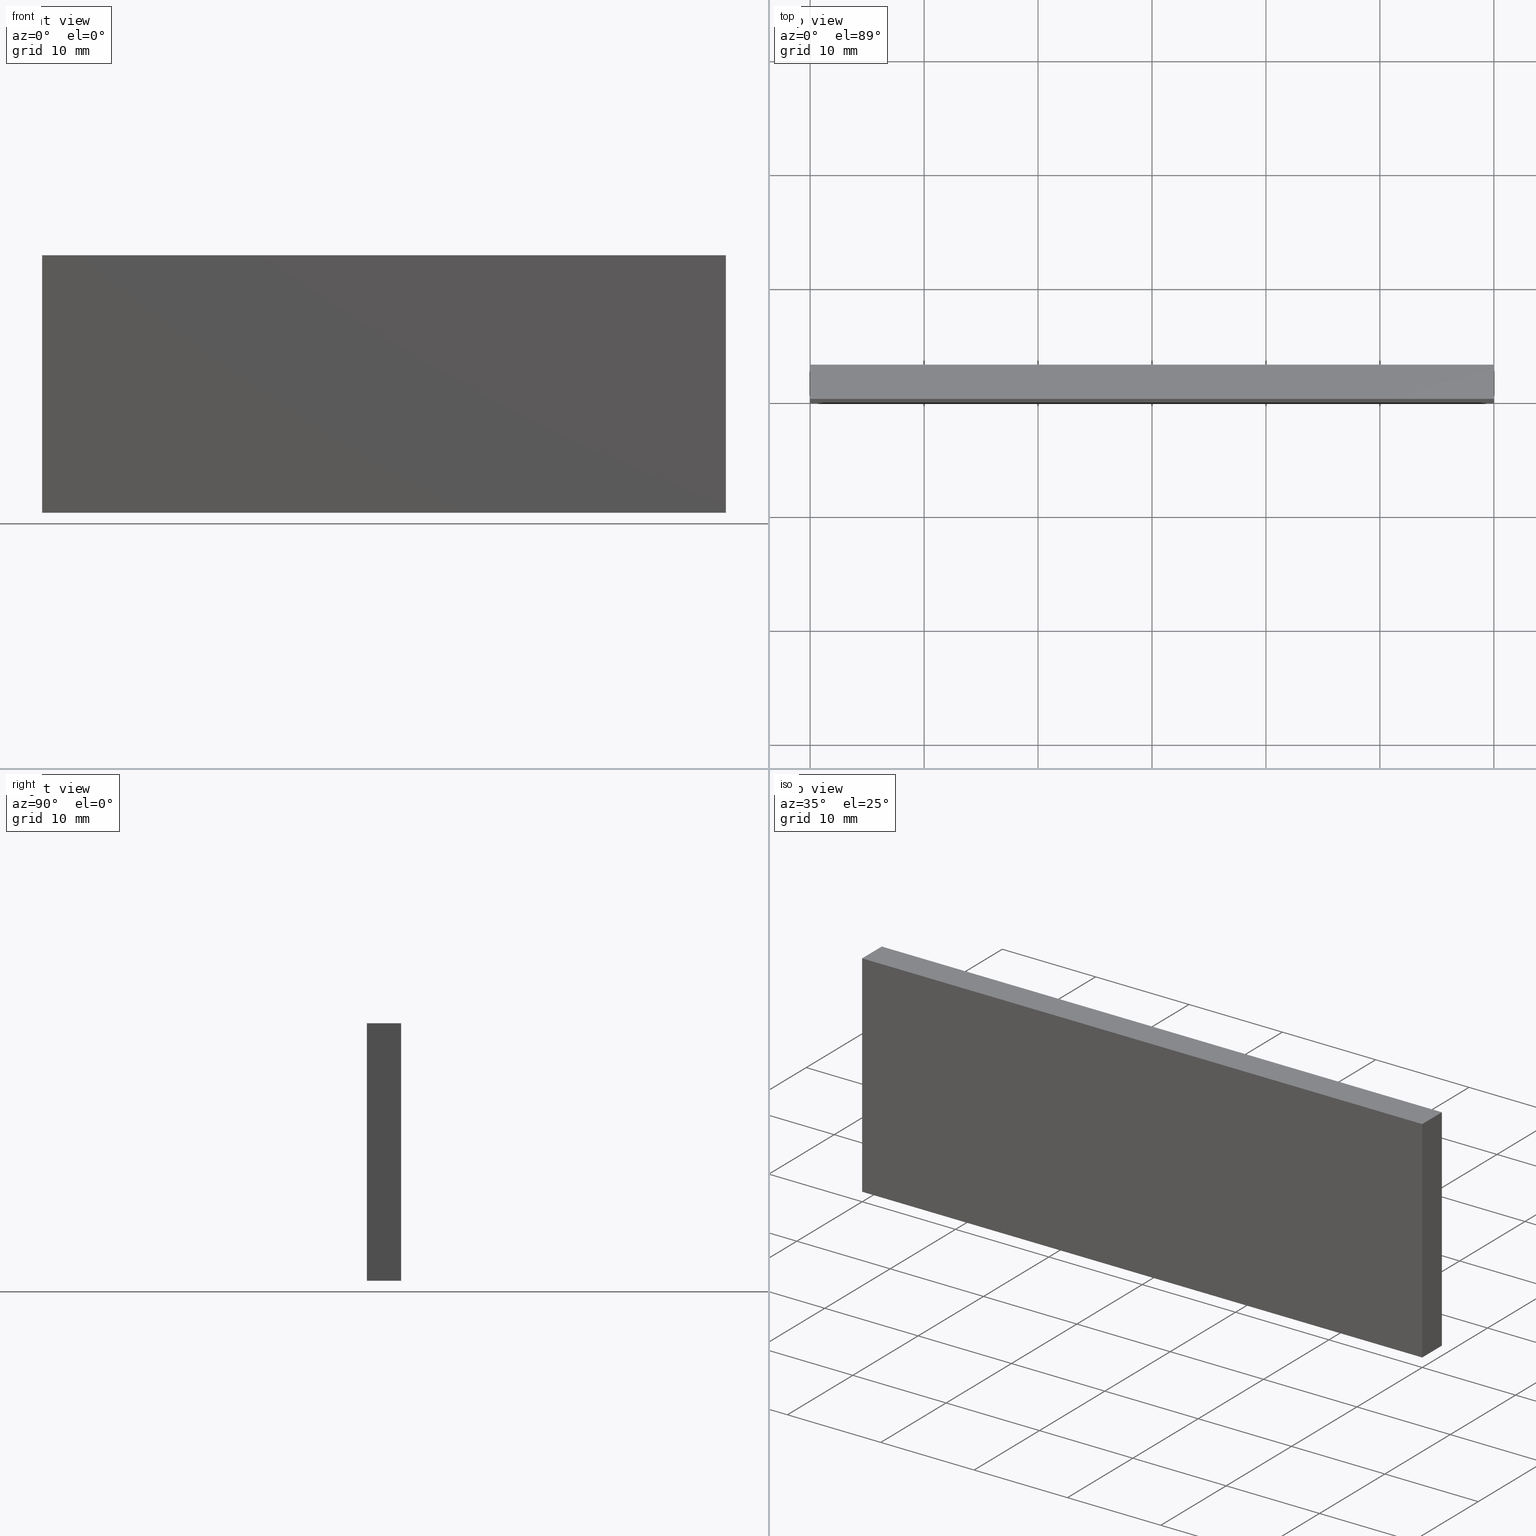
[diagram: canonical four-view strip — front | top / right | iso, engineering-drawing reading convention]
A machine part, canonical four-view strip (front | top / right | iso — engineering-drawing reading convention). The complete STEP part file that produces these views, byte-faithful:
ISO-10303-21;
HEADER;
FILE_DESCRIPTION (( 'STEP AP214' ),
    '1' );
FILE_NAME ('A000199-V.STEP',
    '2020-03-12T15:00:50',
    ( '' ),
    ( '' ),
    'SwSTEP 2.0',
    'SolidWorks 2010',
    '' );
FILE_SCHEMA (( 'AUTOMOTIVE_DESIGN' ));
ENDSEC;

DATA;
#1 = PRODUCT_DEFINITION_CONTEXT ( 'detailed design', #280, 'design' ) ;
#2 = PRODUCT_DEFINITION_SHAPE ( 'NONE', 'NONE',  #172 ) ;
#3 = CARTESIAN_POINT ( 'NONE',  ( 0.0000000000000000000, 0.0000000000000000000, -11.29999999999999900 ) ) ;
#4 = CARTESIAN_POINT ( 'NONE',  ( 30.00000000000000000, 3.000000000000000000, -11.29999999999999900 ) ) ;
#5 = CARTESIAN_POINT ( 'NONE',  ( 30.00000000000000000, 0.0000000000000000000, -11.29999999999999900 ) ) ;
#6 = VERTEX_POINT ( 'NONE', #4 ) ;
#7 = VERTEX_POINT ( 'NONE', #18 ) ;
#8 = CARTESIAN_POINT ( 'NONE',  ( -30.00000000000000000, 0.0000000000000000000, 11.29999999999999900 ) ) ;
#9 = DIRECTION ( 'NONE',  ( -1.000000000000000000, -0.0000000000000000000, -0.0000000000000000000 ) ) ;
#10 = CARTESIAN_POINT ( 'NONE',  ( 30.00000000000000000, 3.000000000000000000, 11.29999999999999900 ) ) ;
#11 = CARTESIAN_POINT ( 'NONE',  ( 30.00000000000000000, 3.000000000000000000, -11.29999999999999900 ) ) ;
#12 = DIRECTION ( 'NONE',  ( 0.0000000000000000000, -1.000000000000000000, -0.0000000000000000000 ) ) ;
#13 = CARTESIAN_POINT ( 'NONE',  ( -30.00000000000000000, 3.000000000000000000, -11.29999999999999900 ) ) ;
#14 = VERTEX_POINT ( 'NONE', #8 ) ;
#15 = CARTESIAN_POINT ( 'NONE',  ( 30.00000000000000000, 3.000000000000000000, 11.29999999999999900 ) ) ;
#16 = VERTEX_POINT ( 'NONE', #17 ) ;
#17 = CARTESIAN_POINT ( 'NONE',  ( -30.00000000000000000, 3.000000000000000000, 11.29999999999999900 ) ) ;
#18 = CARTESIAN_POINT ( 'NONE',  ( -30.00000000000000000, 3.000000000000000000, -11.29999999999999900 ) ) ;
#19 = CARTESIAN_POINT ( 'NONE',  ( -30.00000000000000000, 0.0000000000000000000, -11.29999999999999900 ) ) ;
#20 = VERTEX_POINT ( 'NONE', #5 ) ;
#21 = VERTEX_POINT ( 'NONE', #19 ) ;
#22 = CARTESIAN_POINT ( 'NONE',  ( 30.00000000000000000, 0.0000000000000000000, 11.29999999999999900 ) ) ;
#23 = DIRECTION ( 'NONE',  ( 0.0000000000000000000, 1.000000000000000000, -0.0000000000000000000 ) ) ;
#24 = VERTEX_POINT ( 'NONE', #10 ) ;
#25 = VERTEX_POINT ( 'NONE', #22 ) ;
#26 = PRODUCT ( 'A000199-V', 'A000199-V', '', ( #281 ) ) ;
#27 = EDGE_LOOP ( 'NONE', ( #54, #111, #32, #61 ) ) ;
#28 = ORIENTED_EDGE ( 'NONE', *, *, #161, .F. ) ;
#29 = ORIENTED_EDGE ( 'NONE', *, *, #157, .F. ) ;
#30 = ORIENTED_EDGE ( 'NONE', *, *, #139, .T. ) ;
#31 = EDGE_LOOP ( 'NONE', ( #60, #62, #29, #30 ) ) ;
#32 = ORIENTED_EDGE ( 'NONE', *, *, #148, .F. ) ;
#33 = ORIENTED_EDGE ( 'NONE', *, *, #149, .F. ) ;
#34 = ORIENTED_EDGE ( 'NONE', *, *, #155, .F. ) ;
#35 = ORIENTED_EDGE ( 'NONE', *, *, #139, .F. ) ;
#36 =( GEOMETRIC_REPRESENTATION_CONTEXT ( 3 ) GLOBAL_UNCERTAINTY_ASSIGNED_CONTEXT ( ( #134 ) ) GLOBAL_UNIT_ASSIGNED_CONTEXT ( ( #232, #231, #234 ) ) REPRESENTATION_CONTEXT ( 'NONE', 'WORKASPACE' ) );
#37 = LINE ( 'NONE', #11, #55 ) ;
#38 = VECTOR ( 'NONE', #12, 1000.000000000000000 ) ;
#39 = LINE ( 'NONE', #210, #44 ) ;
#40 =( GEOMETRIC_REPRESENTATION_CONTEXT ( 3 ) GLOBAL_UNCERTAINTY_ASSIGNED_CONTEXT ( ( #135 ) ) GLOBAL_UNIT_ASSIGNED_CONTEXT ( ( #187, #242, #241 ) ) REPRESENTATION_CONTEXT ( 'NONE', 'WORKASPACE' ) );
#41 = COLOUR_RGB ( '',0.7529411764705882200, 0.7529411764705882200, 0.7529411764705882200 ) ;
#42 = PRESENTATION_STYLE_ASSIGNMENT (( #254 ) ) ;
#43 = VECTOR ( 'NONE', #23, 1000.000000000000000 ) ;
#44 = VECTOR ( 'NONE', #208, 1000.000000000000000 ) ;
#45 = ORIENTED_EDGE ( 'NONE', *, *, #156, .F. ) ;
#46 = ORIENTED_EDGE ( 'NONE', *, *, #141, .T. ) ;
#47 = ORIENTED_EDGE ( 'NONE', *, *, #149, .T. ) ;
#48 = ORIENTED_EDGE ( 'NONE', *, *, #155, .T. ) ;
#49 = STYLED_ITEM ( 'NONE', ( #42 ), #136 ) ;
#50 = SHAPE_DEFINITION_REPRESENTATION ( #2, #136 ) ;
#51 = FACE_OUTER_BOUND ( 'NONE', #118, .T. ) ;
#52 = LINE ( 'NONE', #233, #53 ) ;
#53 = VECTOR ( 'NONE', #207, 1000.000000000000000 ) ;
#54 = ORIENTED_EDGE ( 'NONE', *, *, #157, .T. ) ;
#55 = VECTOR ( 'NONE', #214, 1000.000000000000000 ) ;
#56 = LINE ( 'NONE', #212, #96 ) ;
#57 = VECTOR ( 'NONE', #9, 1000.000000000000000 ) ;
#58 = LINE ( 'NONE', #3, #57 ) ;
#59 = LINE ( 'NONE', #13, #38 ) ;
#60 = ORIENTED_EDGE ( 'NONE', *, *, #141, .F. ) ;
#61 = ORIENTED_EDGE ( 'NONE', *, *, #161, .T. ) ;
#62 = ORIENTED_EDGE ( 'NONE', *, *, #142, .F. ) ;
#63 = ORIENTED_EDGE ( 'NONE', *, *, #153, .T. ) ;
#64 = ORIENTED_EDGE ( 'NONE', *, *, #154, .F. ) ;
#65 = ORIENTED_EDGE ( 'NONE', *, *, #156, .T. ) ;
#66 = ORIENTED_EDGE ( 'NONE', *, *, #154, .T. ) ;
#67 = ORIENTED_EDGE ( 'NONE', *, *, #148, .T. ) ;
#68 = ORIENTED_EDGE ( 'NONE', *, *, #160, .T. ) ;
#69 =( GEOMETRIC_REPRESENTATION_CONTEXT ( 3 ) GLOBAL_UNCERTAINTY_ASSIGNED_CONTEXT ( ( #137 ) ) GLOBAL_UNIT_ASSIGNED_CONTEXT ( ( #257, #259, #261 ) ) REPRESENTATION_CONTEXT ( 'NONE', 'WORKASPACE' ) );
#70 = LINE ( 'NONE', #219, #71 ) ;
#71 = VECTOR ( 'NONE', #216, 1000.000000000000000 ) ;
#72 = LINE ( 'NONE', #218, #73 ) ;
#73 = VECTOR ( 'NONE', #211, 1000.000000000000000 ) ;
#74 = LINE ( 'NONE', #217, #75 ) ;
#75 = VECTOR ( 'NONE', #215, 1000.000000000000000 ) ;
#76 =( GEOMETRIC_REPRESENTATION_CONTEXT ( 3 ) GLOBAL_UNCERTAINTY_ASSIGNED_CONTEXT ( ( #184 ) ) GLOBAL_UNIT_ASSIGNED_CONTEXT ( ( #194, #190, #186 ) ) REPRESENTATION_CONTEXT ( 'NONE', 'WORKASPACE' ) );
#77 = SURFACE_STYLE_FILL_AREA ( #225 ) ;
#78 = PRESENTATION_STYLE_ASSIGNMENT (( #196 ) ) ;
#79 = STYLED_ITEM ( 'NONE', ( #78 ), #176 ) ;
#80 = COLOUR_RGB ( '',0.2000000000000000100, 0.2000000000000000100, 0.2000000000000000100 ) ;
#81 = FACE_OUTER_BOUND ( 'NONE', #129, .T. ) ;
#82 = SURFACE_STYLE_FILL_AREA ( #287 ) ;
#83 = PRESENTATION_STYLE_ASSIGNMENT (( #236 ) ) ;
#84 = STYLED_ITEM ( 'NONE', ( #83 ), #178 ) ;
#85 = COLOUR_RGB ( '',0.2000000000000000100, 0.2000000000000000100, 0.2000000000000000100 ) ;
#86 = PRESENTATION_STYLE_ASSIGNMENT (( #197 ) ) ;
#87 = STYLED_ITEM ( 'NONE', ( #86 ), #177 ) ;
#88 =( GEOMETRIC_REPRESENTATION_CONTEXT ( 3 ) GLOBAL_UNCERTAINTY_ASSIGNED_CONTEXT ( ( #183 ) ) GLOBAL_UNIT_ASSIGNED_CONTEXT ( ( #191, #206, #205 ) ) REPRESENTATION_CONTEXT ( 'NONE', 'WORKASPACE' ) );
#89 = FACE_OUTER_BOUND ( 'NONE', #109, .T. ) ;
#90 = SURFACE_STYLE_FILL_AREA ( #228 ) ;
#91 = SURFACE_STYLE_FILL_AREA ( #221 ) ;
#92 = LINE ( 'NONE', #198, #93 ) ;
#93 = VECTOR ( 'NONE', #209, 1000.000000000000000 ) ;
#94 = LINE ( 'NONE', #199, #95 ) ;
#95 = VECTOR ( 'NONE', #213, 1000.000000000000000 ) ;
#96 = VECTOR ( 'NONE', #201, 1000.000000000000000 ) ;
#97 = FACE_OUTER_BOUND ( 'NONE', #27, .T. ) ;
#98 = SURFACE_STYLE_FILL_AREA ( #249 ) ;
#99 = COLOUR_RGB ( '',0.2000000000000000100, 0.2000000000000000100, 0.2000000000000000100 ) ;
#100 = ORIENTED_EDGE ( 'NONE', *, *, #160, .F. ) ;
#101 = EDGE_LOOP ( 'NONE', ( #28, #33, #34, #35 ) ) ;
#102 =( GEOMETRIC_REPRESENTATION_CONTEXT ( 3 ) GLOBAL_UNCERTAINTY_ASSIGNED_CONTEXT ( ( #133 ) ) GLOBAL_UNIT_ASSIGNED_CONTEXT ( ( #275, #278, #277 ) ) REPRESENTATION_CONTEXT ( 'NONE', 'WORKASPACE' ) );
#103 = COLOUR_RGB ( '',0.7529411764705882200, 0.7529411764705882200, 0.7529411764705882200 ) ;
#104 = COLOUR_RGB ( '',0.2000000000000000100, 0.2000000000000000100, 0.2000000000000000100 ) ;
#105 = COLOUR_RGB ( '',0.2000000000000000100, 0.2000000000000000100, 0.2000000000000000100 ) ;
#106 = STYLED_ITEM ( 'NONE', ( #108 ), #182 ) ;
#107 =( GEOMETRIC_REPRESENTATION_CONTEXT ( 3 ) GLOBAL_UNCERTAINTY_ASSIGNED_CONTEXT ( ( #132 ) ) GLOBAL_UNIT_ASSIGNED_CONTEXT ( ( #200, #195, #193 ) ) REPRESENTATION_CONTEXT ( 'NONE', 'WORKASPACE' ) );
#108 = PRESENTATION_STYLE_ASSIGNMENT (( #223 ) ) ;
#109 = EDGE_LOOP ( 'NONE', ( #67, #45, #64, #47 ) ) ;
#110 = LINE ( 'NONE', #15, #43 ) ;
#111 = ORIENTED_EDGE ( 'NONE', *, *, #153, .F. ) ;
#112 = COLOUR_RGB ( '',0.2000000000000000100, 0.2000000000000000100, 0.2000000000000000100 ) ;
#113 = ORIENTED_EDGE ( 'NONE', *, *, #142, .T. ) ;
#114 = FACE_OUTER_BOUND ( 'NONE', #101, .T. ) ;
#115 =( GEOMETRIC_REPRESENTATION_CONTEXT ( 3 ) GLOBAL_UNCERTAINTY_ASSIGNED_CONTEXT ( ( #131 ) ) GLOBAL_UNIT_ASSIGNED_CONTEXT ( ( #256, #258, #260 ) ) REPRESENTATION_CONTEXT ( 'NONE', 'WORKASPACE' ) );
#116 = SURFACE_STYLE_FILL_AREA ( #250 ) ;
#117 = PRESENTATION_STYLE_ASSIGNMENT (( #292 ) ) ;
#118 = EDGE_LOOP ( 'NONE', ( #63, #113, #68, #65 ) ) ;
#119 = STYLED_ITEM ( 'NONE', ( #123 ), #180 ) ;
#120 = CLOSED_SHELL ( 'NONE', ( #176, #177, #178, #179, #180, #181 ) ) ;
#121 =( GEOMETRIC_REPRESENTATION_CONTEXT ( 3 ) GLOBAL_UNCERTAINTY_ASSIGNED_CONTEXT ( ( #130 ) ) GLOBAL_UNIT_ASSIGNED_CONTEXT ( ( #238, #239, #240 ) ) REPRESENTATION_CONTEXT ( 'NONE', 'WORKASPACE' ) );
#122 = FACE_OUTER_BOUND ( 'NONE', #31, .T. ) ;
#123 = PRESENTATION_STYLE_ASSIGNMENT (( #274 ) ) ;
#124 = STYLED_ITEM ( 'NONE', ( #127 ), #179 ) ;
#125 = STYLED_ITEM ( 'NONE', ( #117 ), #181 ) ;
#126 = SURFACE_STYLE_FILL_AREA ( #270 ) ;
#127 = PRESENTATION_STYLE_ASSIGNMENT (( #255 ) ) ;
#128 = SURFACE_STYLE_FILL_AREA ( #290 ) ;
#129 = EDGE_LOOP ( 'NONE', ( #66, #100, #46, #48 ) ) ;
#130 = UNCERTAINTY_MEASURE_WITH_UNIT (LENGTH_MEASURE( 1.000000000000000100E-005 ), #238, 'distance_accuracy_value', 'NONE');
#131 = UNCERTAINTY_MEASURE_WITH_UNIT (LENGTH_MEASURE( 1.000000000000000100E-005 ), #256, 'distance_accuracy_value', 'NONE');
#132 = UNCERTAINTY_MEASURE_WITH_UNIT (LENGTH_MEASURE( 1.000000000000000100E-005 ), #200, 'distance_accuracy_value', 'NONE');
#133 = UNCERTAINTY_MEASURE_WITH_UNIT (LENGTH_MEASURE( 1.000000000000000100E-005 ), #275, 'distance_accuracy_value', 'NONE');
#134 = UNCERTAINTY_MEASURE_WITH_UNIT (LENGTH_MEASURE( 1.000000000000000100E-005 ), #232, 'distance_accuracy_value', 'NONE');
#135 = UNCERTAINTY_MEASURE_WITH_UNIT (LENGTH_MEASURE( 1.000000000000000100E-005 ), #187, 'distance_accuracy_value', 'NONE');
#136 = ADVANCED_BREP_SHAPE_REPRESENTATION ( 'A000199-V', ( #182, #173 ), #40 ) ;
#137 = UNCERTAINTY_MEASURE_WITH_UNIT (LENGTH_MEASURE( 1.000000000000000100E-005 ), #257, 'distance_accuracy_value', 'NONE');
#138 = AXIS2_PLACEMENT_3D ( 'NONE', #237, #227, #229 ) ;
#139 = EDGE_CURVE ( 'NONE', #20, #21, #58, .T. ) ;
#140 = AXIS2_PLACEMENT_3D ( 'NONE', #202, #203, #246 ) ;
#141 = EDGE_CURVE ( 'NONE', #7, #21, #59, .T. ) ;
#142 = EDGE_CURVE ( 'NONE', #6, #7, #37, .T. ) ;
#143 = MECHANICAL_DESIGN_GEOMETRIC_PRESENTATION_REPRESENTATION (  '', ( #87 ), #76 ) ;
#144 = PRESENTATION_LAYER_ASSIGNMENT (  '', '', ( #106 ) ) ;
#145 = PRESENTATION_LAYER_ASSIGNMENT (  '', '', ( #49 ) ) ;
#146 = MECHANICAL_DESIGN_GEOMETRIC_PRESENTATION_REPRESENTATION (  '', ( #106 ), #36 ) ;
#147 = PRESENTATION_LAYER_ASSIGNMENT (  '', '', ( #79 ) ) ;
#148 = EDGE_CURVE ( 'NONE', #25, #24, #110, .T. ) ;
#149 = EDGE_CURVE ( 'NONE', #14, #25, #39, .T. ) ;
#150 = MECHANICAL_DESIGN_GEOMETRIC_PRESENTATION_REPRESENTATION (  '', ( #124 ), #115 ) ;
#151 = PRESENTATION_LAYER_ASSIGNMENT (  '', '', ( #84 ) ) ;
#152 = PRESENTATION_LAYER_ASSIGNMENT (  '', '', ( #87 ) ) ;
#153 = EDGE_CURVE ( 'NONE', #24, #6, #52, .T. ) ;
#154 = EDGE_CURVE ( 'NONE', #14, #16, #70, .T. ) ;
#155 = EDGE_CURVE ( 'NONE', #21, #14, #72, .T. ) ;
#156 = EDGE_CURVE ( 'NONE', #16, #24, #74, .T. ) ;
#157 = EDGE_CURVE ( 'NONE', #20, #6, #94, .T. ) ;
#158 = MECHANICAL_DESIGN_GEOMETRIC_PRESENTATION_REPRESENTATION (  '', ( #79 ), #88 ) ;
#159 = AXIS2_PLACEMENT_3D ( 'NONE', #247, #285, #286 ) ;
#160 = EDGE_CURVE ( 'NONE', #7, #16, #56, .T. ) ;
#161 = EDGE_CURVE ( 'NONE', #25, #20, #92, .T. ) ;
#162 = MECHANICAL_DESIGN_GEOMETRIC_PRESENTATION_REPRESENTATION (  '', ( #84 ), #121 ) ;
#163 = PRESENTATION_LAYER_ASSIGNMENT (  '', '', ( #119 ) ) ;
#164 = PRESENTATION_LAYER_ASSIGNMENT (  '', '', ( #125 ) ) ;
#165 = MECHANICAL_DESIGN_GEOMETRIC_PRESENTATION_REPRESENTATION (  '', ( #125 ), #107 ) ;
#166 = PRESENTATION_LAYER_ASSIGNMENT (  '', '', ( #124 ) ) ;
#167 = MECHANICAL_DESIGN_GEOMETRIC_PRESENTATION_REPRESENTATION (  '', ( #119 ), #102 ) ;
#168 = AXIS2_PLACEMENT_3D ( 'NONE', #272, #244, #245 ) ;
#169 = AXIS2_PLACEMENT_3D ( 'NONE', #222, #263, #266 ) ;
#170 = AXIS2_PLACEMENT_3D ( 'NONE', #267, #189, #185 ) ;
#171 = MECHANICAL_DESIGN_GEOMETRIC_PRESENTATION_REPRESENTATION (  '', ( #49 ), #69 ) ;
#172 = PRODUCT_DEFINITION ( 'UNKNOWN', '', #174, #1 ) ;
#173 = AXIS2_PLACEMENT_3D ( 'NONE', #265, #264, #271 ) ;
#174 = PRODUCT_DEFINITION_FORMATION_WITH_SPECIFIED_SOURCE ( 'ANY', '', #26, .NOT_KNOWN. ) ;
#175 = PRODUCT_RELATED_PRODUCT_CATEGORY ( 'part', '', ( #26 ) ) ;
#176 = ADVANCED_FACE ( 'NONE', ( #51 ), #192, .T. ) ;
#177 = ADVANCED_FACE ( 'NONE', ( #81 ), #268, .F. ) ;
#178 = ADVANCED_FACE ( 'NONE', ( #89 ), #226, .F. ) ;
#179 = ADVANCED_FACE ( 'NONE', ( #97 ), #243, .F. ) ;
#180 = ADVANCED_FACE ( 'NONE', ( #122 ), #262, .F. ) ;
#181 = ADVANCED_FACE ( 'NONE', ( #114 ), #284, .F. ) ;
#182 = MANIFOLD_SOLID_BREP ( 'A000199', #120 ) ;
#183 = UNCERTAINTY_MEASURE_WITH_UNIT (LENGTH_MEASURE( 1.000000000000000100E-005 ), #191, 'distance_accuracy_value', 'NONE');
#184 = UNCERTAINTY_MEASURE_WITH_UNIT (LENGTH_MEASURE( 1.000000000000000100E-005 ), #194, 'distance_accuracy_value', 'NONE');
#185 = DIRECTION ( 'NONE',  ( 0.0000000000000000000, -0.0000000000000000000, 1.000000000000000000 ) ) ;
#186 =( NAMED_UNIT ( * ) SI_UNIT ( $, .STERADIAN. ) SOLID_ANGLE_UNIT ( ) );
#187 =( LENGTH_UNIT ( ) NAMED_UNIT ( * ) SI_UNIT ( .MILLI., .METRE. ) );
#188 = FILL_AREA_STYLE_COLOUR ( '', #103 ) ;
#189 = DIRECTION ( 'NONE',  ( -0.0000000000000000000, 1.000000000000000000, 0.0000000000000000000 ) ) ;
#190 =( NAMED_UNIT ( * ) PLANE_ANGLE_UNIT ( ) SI_UNIT ( $, .RADIAN. ) );
#191 =( LENGTH_UNIT ( ) NAMED_UNIT ( * ) SI_UNIT ( .MILLI., .METRE. ) );
#192 = PLANE ( 'NONE',  #140 ) ;
#193 =( NAMED_UNIT ( * ) SI_UNIT ( $, .STERADIAN. ) SOLID_ANGLE_UNIT ( ) );
#194 =( LENGTH_UNIT ( ) NAMED_UNIT ( * ) SI_UNIT ( .MILLI., .METRE. ) );
#195 =( NAMED_UNIT ( * ) PLANE_ANGLE_UNIT ( ) SI_UNIT ( $, .RADIAN. ) );
#196 = SURFACE_STYLE_USAGE ( .BOTH. , #220 ) ;
#197 = SURFACE_STYLE_USAGE ( .BOTH. , #288 ) ;
#198 = CARTESIAN_POINT ( 'NONE',  ( 30.00000000000000000, 0.0000000000000000000, 0.0000000000000000000 ) ) ;
#199 = CARTESIAN_POINT ( 'NONE',  ( 30.00000000000000000, 3.000000000000000000, -11.29999999999999900 ) ) ;
#200 =( LENGTH_UNIT ( ) NAMED_UNIT ( * ) SI_UNIT ( .MILLI., .METRE. ) );
#201 = DIRECTION ( 'NONE',  ( -0.0000000000000000000, -0.0000000000000000000, 1.000000000000000000 ) ) ;
#202 = CARTESIAN_POINT ( 'NONE',  ( 0.0000000000000000000, 3.000000000000000000, 0.0000000000000000000 ) ) ;
#203 = DIRECTION ( 'NONE',  ( -0.0000000000000000000, 1.000000000000000000, 0.0000000000000000000 ) ) ;
#204 = FILL_AREA_STYLE_COLOUR ( '', #80 ) ;
#205 =( NAMED_UNIT ( * ) SI_UNIT ( $, .STERADIAN. ) SOLID_ANGLE_UNIT ( ) );
#206 =( NAMED_UNIT ( * ) PLANE_ANGLE_UNIT ( ) SI_UNIT ( $, .RADIAN. ) );
#207 = DIRECTION ( 'NONE',  ( -0.0000000000000000000, -0.0000000000000000000, -1.000000000000000000 ) ) ;
#208 = DIRECTION ( 'NONE',  ( 1.000000000000000000, 0.0000000000000000000, 0.0000000000000000000 ) ) ;
#209 = DIRECTION ( 'NONE',  ( -0.0000000000000000000, 0.0000000000000000000, -1.000000000000000000 ) ) ;
#210 = CARTESIAN_POINT ( 'NONE',  ( 0.0000000000000000000, 0.0000000000000000000, 11.29999999999999900 ) ) ;
#211 = DIRECTION ( 'NONE',  ( 0.0000000000000000000, -0.0000000000000000000, 1.000000000000000000 ) ) ;
#212 = CARTESIAN_POINT ( 'NONE',  ( -30.00000000000000000, 3.000000000000000000, -11.29999999999999900 ) ) ;
#213 = DIRECTION ( 'NONE',  ( -0.0000000000000000000, 1.000000000000000000, 0.0000000000000000000 ) ) ;
#214 = DIRECTION ( 'NONE',  ( -1.000000000000000000, -0.0000000000000000000, 0.0000000000000000000 ) ) ;
#215 = DIRECTION ( 'NONE',  ( 1.000000000000000000, -0.0000000000000000000, 0.0000000000000000000 ) ) ;
#216 = DIRECTION ( 'NONE',  ( 0.0000000000000000000, 1.000000000000000000, 0.0000000000000000000 ) ) ;
#217 = CARTESIAN_POINT ( 'NONE',  ( -30.00000000000000000, 3.000000000000000000, 11.29999999999999900 ) ) ;
#218 = CARTESIAN_POINT ( 'NONE',  ( -30.00000000000000000, 0.0000000000000000000, 0.0000000000000000000 ) ) ;
#219 = CARTESIAN_POINT ( 'NONE',  ( -30.00000000000000000, 3.000000000000000000, 11.29999999999999900 ) ) ;
#220 = SURFACE_SIDE_STYLE ('',( #77 ) ) ;
#221 = FILL_AREA_STYLE ('',( #188 ) ) ;
#222 = CARTESIAN_POINT ( 'NONE',  ( 30.00000000000000000, 3.000000000000000000, 11.29999999999999900 ) ) ;
#223 = SURFACE_STYLE_USAGE ( .BOTH. , #224 ) ;
#224 = SURFACE_SIDE_STYLE ('',( #91 ) ) ;
#225 = FILL_AREA_STYLE ('',( #204 ) ) ;
#226 = PLANE ( 'NONE',  #168 ) ;
#227 = DIRECTION ( 'NONE',  ( 1.000000000000000000, 0.0000000000000000000, 0.0000000000000000000 ) ) ;
#228 = FILL_AREA_STYLE ('',( #230 ) ) ;
#229 = DIRECTION ( 'NONE',  ( 0.0000000000000000000, 0.0000000000000000000, -1.000000000000000000 ) ) ;
#230 = FILL_AREA_STYLE_COLOUR ( '', #99 ) ;
#231 =( NAMED_UNIT ( * ) PLANE_ANGLE_UNIT ( ) SI_UNIT ( $, .RADIAN. ) );
#232 =( LENGTH_UNIT ( ) NAMED_UNIT ( * ) SI_UNIT ( .MILLI., .METRE. ) );
#233 = CARTESIAN_POINT ( 'NONE',  ( 30.00000000000000000, 3.000000000000000000, 11.29999999999999900 ) ) ;
#234 =( NAMED_UNIT ( * ) SI_UNIT ( $, .STERADIAN. ) SOLID_ANGLE_UNIT ( ) );
#235 = SURFACE_SIDE_STYLE ('',( #90 ) ) ;
#236 = SURFACE_STYLE_USAGE ( .BOTH. , #235 ) ;
#237 = CARTESIAN_POINT ( 'NONE',  ( -30.00000000000000000, 3.000000000000000000, -11.29999999999999900 ) ) ;
#238 =( LENGTH_UNIT ( ) NAMED_UNIT ( * ) SI_UNIT ( .MILLI., .METRE. ) );
#239 =( NAMED_UNIT ( * ) PLANE_ANGLE_UNIT ( ) SI_UNIT ( $, .RADIAN. ) );
#240 =( NAMED_UNIT ( * ) SI_UNIT ( $, .STERADIAN. ) SOLID_ANGLE_UNIT ( ) );
#241 =( NAMED_UNIT ( * ) SI_UNIT ( $, .STERADIAN. ) SOLID_ANGLE_UNIT ( ) );
#242 =( NAMED_UNIT ( * ) PLANE_ANGLE_UNIT ( ) SI_UNIT ( $, .RADIAN. ) );
#243 = PLANE ( 'NONE',  #169 ) ;
#244 = DIRECTION ( 'NONE',  ( 0.0000000000000000000, 0.0000000000000000000, -1.000000000000000000 ) ) ;
#245 = DIRECTION ( 'NONE',  ( -1.000000000000000000, 0.0000000000000000000, -0.0000000000000000000 ) ) ;
#246 = DIRECTION ( 'NONE',  ( 0.0000000000000000000, -0.0000000000000000000, 1.000000000000000000 ) ) ;
#247 = CARTESIAN_POINT ( 'NONE',  ( 30.00000000000000000, 3.000000000000000000, -11.29999999999999900 ) ) ;
#248 = FILL_AREA_STYLE_COLOUR ( '', #105 ) ;
#249 = FILL_AREA_STYLE ('',( #248 ) ) ;
#250 = FILL_AREA_STYLE ('',( #252 ) ) ;
#251 = SURFACE_SIDE_STYLE ('',( #98 ) ) ;
#252 = FILL_AREA_STYLE_COLOUR ( '', #41 ) ;
#253 = SURFACE_SIDE_STYLE ('',( #116 ) ) ;
#254 = SURFACE_STYLE_USAGE ( .BOTH. , #253 ) ;
#255 = SURFACE_STYLE_USAGE ( .BOTH. , #251 ) ;
#256 =( LENGTH_UNIT ( ) NAMED_UNIT ( * ) SI_UNIT ( .MILLI., .METRE. ) );
#257 =( LENGTH_UNIT ( ) NAMED_UNIT ( * ) SI_UNIT ( .MILLI., .METRE. ) );
#258 =( NAMED_UNIT ( * ) PLANE_ANGLE_UNIT ( ) SI_UNIT ( $, .RADIAN. ) );
#259 =( NAMED_UNIT ( * ) PLANE_ANGLE_UNIT ( ) SI_UNIT ( $, .RADIAN. ) );
#260 =( NAMED_UNIT ( * ) SI_UNIT ( $, .STERADIAN. ) SOLID_ANGLE_UNIT ( ) );
#261 =( NAMED_UNIT ( * ) SI_UNIT ( $, .STERADIAN. ) SOLID_ANGLE_UNIT ( ) );
#262 = PLANE ( 'NONE',  #159 ) ;
#263 = DIRECTION ( 'NONE',  ( -1.000000000000000000, 0.0000000000000000000, 0.0000000000000000000 ) ) ;
#264 = DIRECTION ( 'NONE',  ( 0.0000000000000000000, 0.0000000000000000000, 1.000000000000000000 ) ) ;
#265 = CARTESIAN_POINT ( 'NONE',  ( 0.0000000000000000000, 0.0000000000000000000, 0.0000000000000000000 ) ) ;
#266 = DIRECTION ( 'NONE',  ( 0.0000000000000000000, 0.0000000000000000000, 1.000000000000000000 ) ) ;
#267 = CARTESIAN_POINT ( 'NONE',  ( 0.0000000000000000000, 0.0000000000000000000, 0.0000000000000000000 ) ) ;
#268 = PLANE ( 'NONE',  #138 ) ;
#269 = FILL_AREA_STYLE_COLOUR ( '', #112 ) ;
#270 = FILL_AREA_STYLE ('',( #269 ) ) ;
#271 = DIRECTION ( 'NONE',  ( 1.000000000000000000, 0.0000000000000000000, 0.0000000000000000000 ) ) ;
#272 = CARTESIAN_POINT ( 'NONE',  ( -30.00000000000000000, 3.000000000000000000, 11.29999999999999900 ) ) ;
#273 = SURFACE_SIDE_STYLE ('',( #126 ) ) ;
#274 = SURFACE_STYLE_USAGE ( .BOTH. , #273 ) ;
#275 =( LENGTH_UNIT ( ) NAMED_UNIT ( * ) SI_UNIT ( .MILLI., .METRE. ) );
#276 = APPLICATION_CONTEXT ( 'automotive_design' ) ;
#277 =( NAMED_UNIT ( * ) SI_UNIT ( $, .STERADIAN. ) SOLID_ANGLE_UNIT ( ) );
#278 =( NAMED_UNIT ( * ) PLANE_ANGLE_UNIT ( ) SI_UNIT ( $, .RADIAN. ) );
#279 = APPLICATION_PROTOCOL_DEFINITION ( 'draft international standard', 'automotive_design', 1998, #276 ) ;
#280 = APPLICATION_CONTEXT ( 'automotive_design' ) ;
#281 = PRODUCT_CONTEXT ( 'NONE', #276, 'mechanical' ) ;
#282 = FILL_AREA_STYLE_COLOUR ( '', #85 ) ;
#283 = APPLICATION_PROTOCOL_DEFINITION ( 'draft international standard', 'automotive_design', 1998, #280 ) ;
#284 = PLANE ( 'NONE',  #170 ) ;
#285 = DIRECTION ( 'NONE',  ( 0.0000000000000000000, 0.0000000000000000000, 1.000000000000000000 ) ) ;
#286 = DIRECTION ( 'NONE',  ( 1.000000000000000000, 0.0000000000000000000, -0.0000000000000000000 ) ) ;
#287 = FILL_AREA_STYLE ('',( #282 ) ) ;
#288 = SURFACE_SIDE_STYLE ('',( #82 ) ) ;
#289 = FILL_AREA_STYLE_COLOUR ( '', #104 ) ;
#290 = FILL_AREA_STYLE ('',( #289 ) ) ;
#291 = SURFACE_SIDE_STYLE ('',( #128 ) ) ;
#292 = SURFACE_STYLE_USAGE ( .BOTH. , #291 ) ;
ENDSEC;
END-ISO-10303-21;
